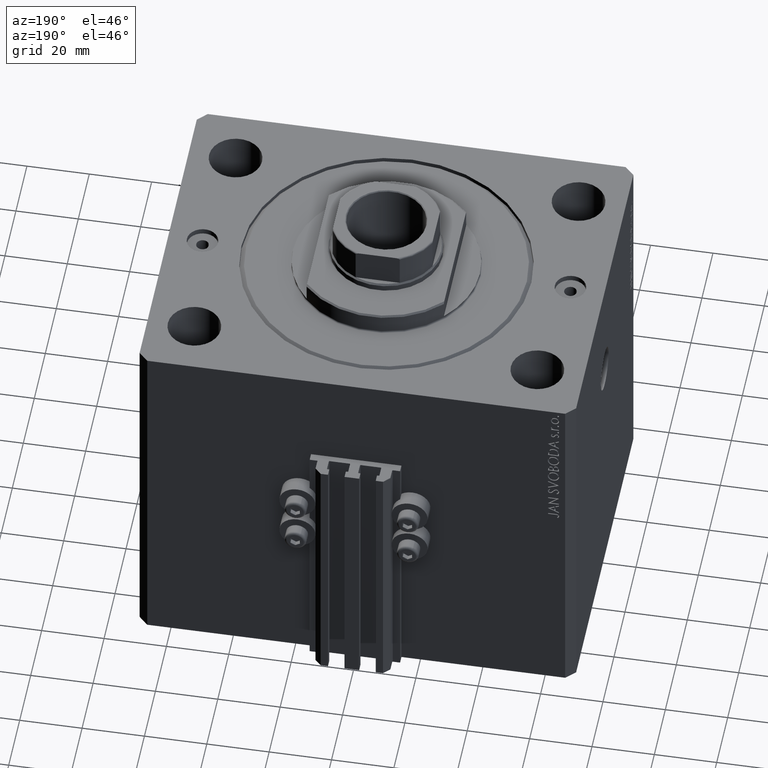
[diagram: clean part render]
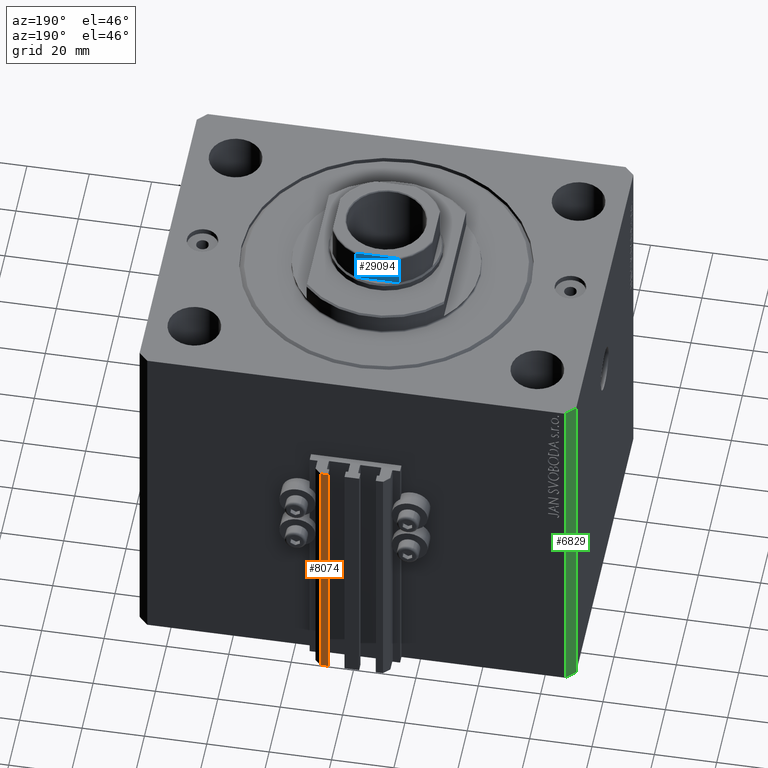
[diagram: same view with three faces highlighted in distinct colors, each labeled with its STEP entity id]
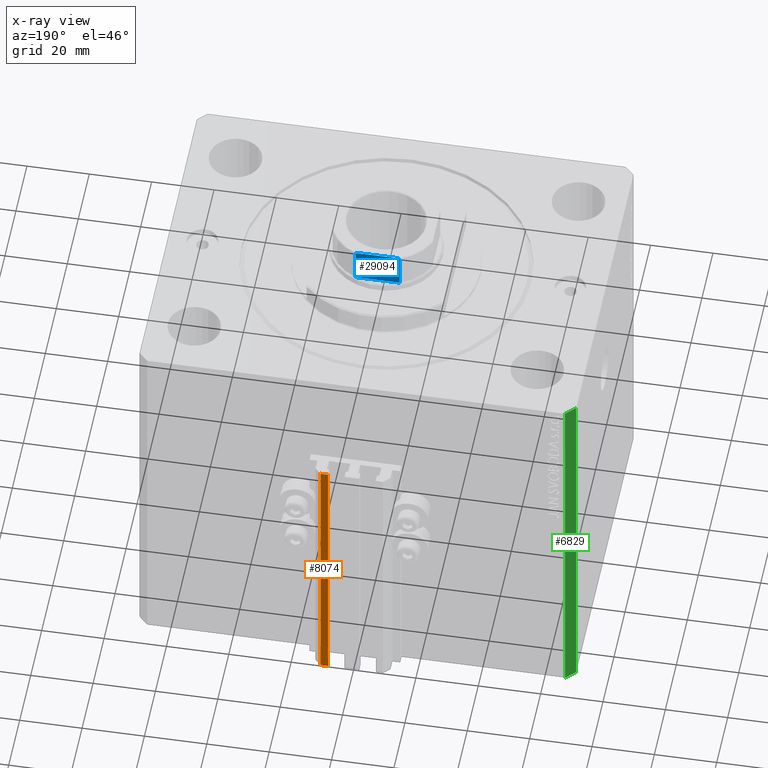
[diagram: x-ray of the same camera — body ghosted, the three highlighted faces saturated]
A machine part, auxiliary view with three faces highlighted in distinct colors.
The next image is the same camera in x-ray (body ghosted, the three faces saturated) — at least one of them is partly hidden behind the body in this view.
Their STEP definitions:

[orange] entity #8074 — the highlighted planar face has unit normal (0, 1, 0).
#11 = ORIENTED_EDGE ( 'NONE', *, *, #35572, .F. ) ;
#1462 = CARTESIAN_POINT ( 'NONE',  ( 7.649999999999998579, 63.00000000000002842, -120.0000000000000000 ) ) ;
#1940 = EDGE_CURVE ( 'NONE', #36318, #3624, #20535, .T. ) ;
#3175 = CARTESIAN_POINT ( 'NONE',  ( 9.999999999999998224, 63.00000000000002842, -33.00000000000000000 ) ) ;
#3624 = VERTEX_POINT ( 'NONE', #45221 ) ;
#4787 = CARTESIAN_POINT ( 'NONE',  ( 9.999999999999998224, 63.00000000000002842, -33.00000000000000000 ) ) ;
#4854 = DIRECTION ( 'NONE',  ( 0.000000000000000000, 0.000000000000000000, 1.000000000000000000 ) ) ;
#5019 = LINE ( 'NONE', #4787, #14436 ) ;
#5658 = ORIENTED_EDGE ( 'NONE', *, *, #1940, .T. ) ;
#7741 = CARTESIAN_POINT ( 'NONE',  ( 7.649999999999998579, 63.00000000000002842, -33.00000000000000000 ) ) ;
#7944 = ORIENTED_EDGE ( 'NONE', *, *, #22967, .F. ) ;
#8074 = ADVANCED_FACE ( 'NONE', ( #44920 ), #16037, .T. ) ;
#12429 = DIRECTION ( 'NONE',  ( 0.000000000000000000, 0.000000000000000000, 1.000000000000000000 ) ) ;
#14436 = VECTOR ( 'NONE', #22434, 1000.000000000000000 ) ;
#15324 = VECTOR ( 'NONE', #12429, 1000.000000000000000 ) ;
#16037 = PLANE ( 'NONE',  #29109 ) ;
#17347 = ORIENTED_EDGE ( 'NONE', *, *, #32049, .T. ) ;
#19610 = CARTESIAN_POINT ( 'NONE',  ( 9.999999999999998224, 63.00000000000002842, -120.0000000000000000 ) ) ;
#20226 = EDGE_LOOP ( 'NONE', ( #7944, #11, #5658, #17347 ) ) ;
#20535 = LINE ( 'NONE', #35102, #22632 ) ;
#20783 = DIRECTION ( 'NONE',  ( -1.000000000000000000, 0.000000000000000000, 0.000000000000000000 ) ) ;
#22212 = VERTEX_POINT ( 'NONE', #7741 ) ;
#22434 = DIRECTION ( 'NONE',  ( -1.000000000000000000, 0.000000000000000000, 0.000000000000000000 ) ) ;
#22632 = VECTOR ( 'NONE', #20783, 1000.000000000000000 ) ;
#22951 = DIRECTION ( 'NONE',  ( 0.000000000000000000, 1.000000000000000000, -0.000000000000000000 ) ) ;
#22967 = EDGE_CURVE ( 'NONE', #42365, #22212, #5019, .T. ) ;
#26317 = CARTESIAN_POINT ( 'NONE',  ( 9.999999999999998224, 63.00000000000002842, -120.0000000000000000 ) ) ;
#29109 = AXIS2_PLACEMENT_3D ( 'NONE', #19610, #22951, #34178 ) ;
#29438 = CARTESIAN_POINT ( 'NONE',  ( 9.999999999999998224, 63.00000000000002842, -120.0000000000000000 ) ) ;
#29915 = VECTOR ( 'NONE', #4854, 1000.000000000000000 ) ;
#31038 = LINE ( 'NONE', #1462, #15324 ) ;
#32049 = EDGE_CURVE ( 'NONE', #3624, #22212, #31038, .T. ) ;
#34178 = DIRECTION ( 'NONE',  ( 0.000000000000000000, 0.000000000000000000, 1.000000000000000000 ) ) ;
#35102 = CARTESIAN_POINT ( 'NONE',  ( 9.999999999999998224, 63.00000000000002842, -120.0000000000000000 ) ) ;
#35572 = EDGE_CURVE ( 'NONE', #36318, #42365, #41590, .T. ) ;
#36318 = VERTEX_POINT ( 'NONE', #29438 ) ;
#41590 = LINE ( 'NONE', #26317, #29915 ) ;
#42365 = VERTEX_POINT ( 'NONE', #3175 ) ;
#44920 = FACE_OUTER_BOUND ( 'NONE', #20226, .T. ) ;
#45221 = CARTESIAN_POINT ( 'NONE',  ( 7.649999999999998579, 63.00000000000002842, -120.0000000000000000 ) ) ;

[blue] entity #29094 — the highlighted planar face has unit normal (0, -1, 0).
#85 = CARTESIAN_POINT ( 'NONE',  ( -16.00000000000000000, 15.99999999999999645, 115.0000000000000000 ) ) ;
#255 = CARTESIAN_POINT ( 'NONE',  ( 7.055793701721082556, 16.00000000000000000, 114.6256279161197966 ) ) ;
#599 = VERTEX_POINT ( 'NONE', #41501 ) ;
#2696 = CARTESIAN_POINT ( 'NONE',  ( -16.00000000000000000, 15.99999999999999645, 115.0000000000000000 ) ) ;
#2972 = FACE_OUTER_BOUND ( 'NONE', #21790, .T. ) ;
#3845 = CARTESIAN_POINT ( 'NONE',  ( 6.620608993398011677, 16.00000000000000355, 114.8919184437072687 ) ) ;
#5087 = EDGE_CURVE ( 'NONE', #22923, #27304, #36528, .T. ) ;
#5863 = CARTESIAN_POINT ( 'NONE',  ( -6.968475375953136819, 15.99999999999999645, 114.7205009019615289 ) ) ;
#6163 = CARTESIAN_POINT ( 'NONE',  ( -7.088723439378916247, 16.00000000000000000, -0.001000000000001000089 ) ) ;
#6453 = CARTESIAN_POINT ( 'NONE',  ( -5.744562646538033945, 16.00000000000000000, 115.0000000000000000 ) ) ;
#7873 = CARTESIAN_POINT ( 'NONE',  ( 5.744562646538033057, 16.00000000000000000, 115.0000000000000000 ) ) ;
#8679 = EDGE_CURVE ( 'NONE', #17455, #38555, #12736, .T. ) ;
#8928 = ORIENTED_EDGE ( 'NONE', *, *, #8679, .T. ) ;
#10529 = LINE ( 'NONE', #2696, #28472 ) ;
#11283 = DIRECTION ( 'NONE',  ( 1.084202172485504557E-16, -1.000000000000000000, 0.000000000000000000 ) ) ;
#11935 = B_SPLINE_CURVE_WITH_KNOTS ( 'NONE', 3,
 ( #17532, #13717, #42141, #5863, #42382, #28278, #34979, #24929, #31388, #42852 ),
 .UNSPECIFIED., .F., .F.,
 ( 4, 2, 2, 2, 4 ),
 ( 0.000000000000000000, 0.0001928955851489424047, 0.0003857911702978848094, 0.0007715823405957720040, 0.001543164681191536419 ),
 .UNSPECIFIED. ) ;
#12736 = LINE ( 'NONE', #31116, #20774 ) ;
#13717 = CARTESIAN_POINT ( 'NONE',  ( -7.088723439378917135, 16.00000000000000355, 114.5653596029795693 ) ) ;
#14607 = ORIENTED_EDGE ( 'NONE', *, *, #5087, .T. ) ;
#15048 = CARTESIAN_POINT ( 'NONE',  ( 5.744562646538033057, 16.00000000000000000, 115.0000000000000000 ) ) ;
#15092 = ORIENTED_EDGE ( 'NONE', *, *, #32470, .T. ) ;
#16085 = DIRECTION ( 'NONE',  ( -0.000000000000000000, -0.000000000000000000, 1.000000000000000000 ) ) ;
#16397 = ORIENTED_EDGE ( 'NONE', *, *, #38277, .T. ) ;
#17403 = VECTOR ( 'NONE', #16085, 1000.000000000000000 ) ;
#17455 = VERTEX_POINT ( 'NONE', #20557 ) ;
#17532 = CARTESIAN_POINT ( 'NONE',  ( -7.088723439378916247, 16.00000000000000000, 114.5000000000000000 ) ) ;
#18390 = CARTESIAN_POINT ( 'NONE',  ( 6.744478600285203740, 16.00000000000000000, 114.8522542963852828 ) ) ;
#19890 = LINE ( 'NONE', #34223, #17403 ) ;
#20557 = CARTESIAN_POINT ( 'NONE',  ( 7.088723439378916247, 16.00000000000000355, 104.0000000000000284 ) ) ;
#20774 = VECTOR ( 'NONE', #24189, 1000.000000000000000 ) ;
#21407 = EDGE_CURVE ( 'NONE', #17455, #27304, #19890, .T. ) ;
#21790 = EDGE_LOOP ( 'NONE', ( #45504, #14607, #23406, #8928, #15092, #16397 ) ) ;
#22923 = VERTEX_POINT ( 'NONE', #7873 ) ;
#23406 = ORIENTED_EDGE ( 'NONE', *, *, #21407, .F. ) ;
#24189 = DIRECTION ( 'NONE',  ( -1.000000000000000000, -1.084202172485504434E-16, -0.000000000000000000 ) ) ;
#24929 = CARTESIAN_POINT ( 'NONE',  ( -6.252433022027811482, 15.99999999999999289, 114.9806157152108170 ) ) ;
#25096 = DIRECTION ( 'NONE',  ( -1.000000000000000000, -1.084202172485504434E-16, -0.000000000000000000 ) ) ;
#26016 = VECTOR ( 'NONE', #45541, 1000.000000000000000 ) ;
#27304 = VERTEX_POINT ( 'NONE', #38029 ) ;
#28278 = CARTESIAN_POINT ( 'NONE',  ( -6.746962372739937486, 15.99999999999999645, 114.8511068297690514 ) ) ;
#28472 = VECTOR ( 'NONE', #25096, 1000.000000000000000 ) ;
#28968 = DIRECTION ( 'NONE',  ( 1.000000000000000000, 1.084202172485504557E-16, 0.000000000000000000 ) ) ;
#29094 = ADVANCED_FACE ( 'NONE', ( #2972 ), #36154, .F. ) ;
#29380 = CARTESIAN_POINT ( 'NONE',  ( 7.088723439378914470, 16.00000000000000355, 114.5655697653146632 ) ) ;
#29609 = CARTESIAN_POINT ( 'NONE',  ( 5.999698100840003434, 16.00000000000000355, 115.0000000000000284 ) ) ;
#30982 = LINE ( 'NONE', #6163, #26016 ) ;
#31116 = CARTESIAN_POINT ( 'NONE',  ( -16.00000000000000000, 15.99999999999999645, 104.0000000000000142 ) ) ;
#31388 = CARTESIAN_POINT ( 'NONE',  ( -5.999773414835113172, 16.00000000000000000, 115.0000000000000284 ) ) ;
#32018 = AXIS2_PLACEMENT_3D ( 'NONE', #85, #11283, #28968 ) ;
#32146 = VERTEX_POINT ( 'NONE', #6453 ) ;
#32470 = EDGE_CURVE ( 'NONE', #38555, #599, #30982, .T. ) ;
#32950 = CARTESIAN_POINT ( 'NONE',  ( 6.967626683430020229, 16.00000000000000000, 114.7212986014228733 ) ) ;
#34223 = CARTESIAN_POINT ( 'NONE',  ( 7.088723439378914470, 16.00000000000000000, -0.001000000000001000089 ) ) ;
#34979 = CARTESIAN_POINT ( 'NONE',  ( -6.623467753754351151, 16.00000000000000355, 114.8910978819201887 ) ) ;
#36154 = PLANE ( 'NONE',  #32018 ) ;
#36528 = B_SPLINE_CURVE_WITH_KNOTS ( 'NONE', 3,
 ( #15048, #29609, #36550, #3845, #18390, #44168, #32950, #255, #29380, #43933 ),
 .UNSPECIFIED., .F., .F.,
 ( 4, 2, 2, 2, 4 ),
 ( 8.673617379884035472E-19, 0.0007561879621635766383, 0.001134281943245368102, 0.001323328933786262641, 0.001512375924327157180 ),
 .UNSPECIFIED. ) ;
#36550 = CARTESIAN_POINT ( 'NONE',  ( 6.251780714621283153, 16.00000000000000000, 114.9805079891187063 ) ) ;
#37459 = EDGE_CURVE ( 'NONE', #22923, #32146, #10529, .T. ) ;
#38029 = CARTESIAN_POINT ( 'NONE',  ( 7.088723439378914470, 16.00000000000000000, 114.5000000000000000 ) ) ;
#38277 = EDGE_CURVE ( 'NONE', #599, #32146, #11935, .T. ) ;
#38555 = VERTEX_POINT ( 'NONE', #42971 ) ;
#41501 = CARTESIAN_POINT ( 'NONE',  ( -7.088723439378916247, 16.00000000000000000, 114.5000000000000000 ) ) ;
#42141 = CARTESIAN_POINT ( 'NONE',  ( -7.055665994487715587, 15.99999999999999289, 114.6256422470903829 ) ) ;
#42382 = CARTESIAN_POINT ( 'NONE',  ( -6.914772706552272830, 15.99999999999999645, 114.7576711345670617 ) ) ;
#42852 = CARTESIAN_POINT ( 'NONE',  ( -5.744562646538033945, 16.00000000000000000, 115.0000000000000000 ) ) ;
#42971 = CARTESIAN_POINT ( 'NONE',  ( -7.088723439378917135, 16.00000000000000000, 104.0000000000000284 ) ) ;
#43933 = CARTESIAN_POINT ( 'NONE',  ( 7.088723439378914470, 16.00000000000000000, 114.5000000000000000 ) ) ;
#44168 = CARTESIAN_POINT ( 'NONE',  ( 6.914158745692625452, 16.00000000000000000, 114.7581288012991081 ) ) ;
#45504 = ORIENTED_EDGE ( 'NONE', *, *, #37459, .F. ) ;
#45541 = DIRECTION ( 'NONE',  ( -0.000000000000000000, -0.000000000000000000, 1.000000000000000000 ) ) ;

[green] entity #6829 — the highlighted planar face has unit normal (-0.7071, 0.7071, 0).
#87 = FACE_OUTER_BOUND ( 'NONE', #9399, .T. ) ;
#2888 = DIRECTION ( 'NONE',  ( 0.000000000000000000, 0.000000000000000000, 1.000000000000000000 ) ) ;
#3736 = VERTEX_POINT ( 'NONE', #32765 ) ;
#5708 = ORIENTED_EDGE ( 'NONE', *, *, #14968, .F. ) ;
#6829 = ADVANCED_FACE ( 'NONE', ( #87 ), #22038, .T. ) ;
#7227 = DIRECTION ( 'NONE',  ( -0.7071067811865483499, -0.7071067811865466846, 0.000000000000000000 ) ) ;
#8482 = ORIENTED_EDGE ( 'NONE', *, *, #11236, .T. ) ;
#8621 = VECTOR ( 'NONE', #36489, 1000.000000000000000 ) ;
#9399 = EDGE_LOOP ( 'NONE', ( #5708, #14706, #25779, #8482 ) ) ;
#10351 = DIRECTION ( 'NONE',  ( -0.7071067811865483499, -0.7071067811865465735, 0.000000000000000000 ) ) ;
#10792 = CARTESIAN_POINT ( 'NONE',  ( -67.00000000000000000, 55.00000000000000000, -120.0000000000000000 ) ) ;
#11236 = EDGE_CURVE ( 'NONE', #3736, #18381, #36095, .T. ) ;
#14145 = CARTESIAN_POINT ( 'NONE',  ( -67.00000000000000000, 55.00000000000000000, -120.0000000000000000 ) ) ;
#14706 = ORIENTED_EDGE ( 'NONE', *, *, #24295, .F. ) ;
#14968 = EDGE_CURVE ( 'NONE', #19415, #18381, #39357, .T. ) ;
#16576 = CARTESIAN_POINT ( 'NONE',  ( -70.00000000000000000, 52.00000000000000711, 0.000000000000000000 ) ) ;
#16651 = VECTOR ( 'NONE', #2888, 1000.000000000000000 ) ;
#18381 = VERTEX_POINT ( 'NONE', #16576 ) ;
#19308 = VECTOR ( 'NONE', #34497, 1000.000000000000000 ) ;
#19415 = VERTEX_POINT ( 'NONE', #24265 ) ;
#21032 = LINE ( 'NONE', #35595, #16651 ) ;
#22038 = PLANE ( 'NONE',  #23722 ) ;
#23722 = AXIS2_PLACEMENT_3D ( 'NONE', #43532, #46894, #10351 ) ;
#24265 = CARTESIAN_POINT ( 'NONE',  ( -67.00000000000000000, 55.00000000000000000, 0.000000000000000000 ) ) ;
#24295 = EDGE_CURVE ( 'NONE', #42366, #19415, #21032, .T. ) ;
#25779 = ORIENTED_EDGE ( 'NONE', *, *, #34594, .T. ) ;
#31616 = CARTESIAN_POINT ( 'NONE',  ( -70.00000000000000000, 52.00000000000000711, -120.0000000000000000 ) ) ;
#32765 = CARTESIAN_POINT ( 'NONE',  ( -70.00000000000000000, 52.00000000000000711, -120.0000000000000000 ) ) ;
#33737 = VECTOR ( 'NONE', #7227, 1000.000000000000000 ) ;
#34497 = DIRECTION ( 'NONE',  ( 0.000000000000000000, 0.000000000000000000, 1.000000000000000000 ) ) ;
#34594 = EDGE_CURVE ( 'NONE', #42366, #3736, #40406, .T. ) ;
#35595 = CARTESIAN_POINT ( 'NONE',  ( -67.00000000000000000, 55.00000000000000000, -120.0000000000000000 ) ) ;
#36095 = LINE ( 'NONE', #31616, #19308 ) ;
#36489 = DIRECTION ( 'NONE',  ( -0.7071067811865483499, -0.7071067811865466846, 0.000000000000000000 ) ) ;
#39357 = LINE ( 'NONE', #46995, #8621 ) ;
#40406 = LINE ( 'NONE', #10792, #33737 ) ;
#42366 = VERTEX_POINT ( 'NONE', #14145 ) ;
#43532 = CARTESIAN_POINT ( 'NONE',  ( -67.00000000000000000, 55.00000000000000000, -120.0000000000000000 ) ) ;
#46894 = DIRECTION ( 'NONE',  ( -0.7071067811865466846, 0.7071067811865484609, 0.000000000000000000 ) ) ;
#46995 = CARTESIAN_POINT ( 'NONE',  ( -67.00000000000000000, 55.00000000000000000, 0.000000000000000000 ) ) ;